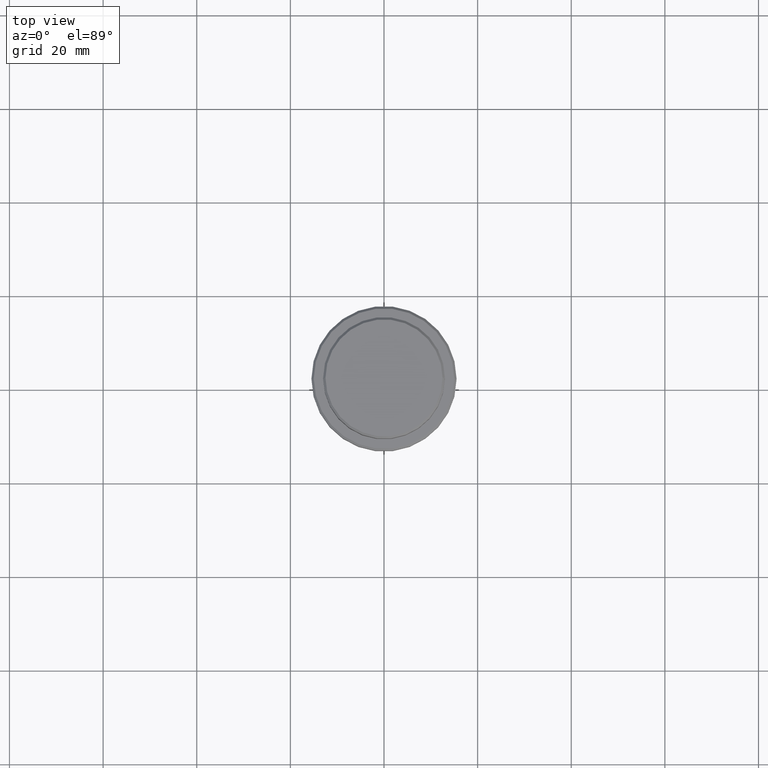
[diagram: clean part render]
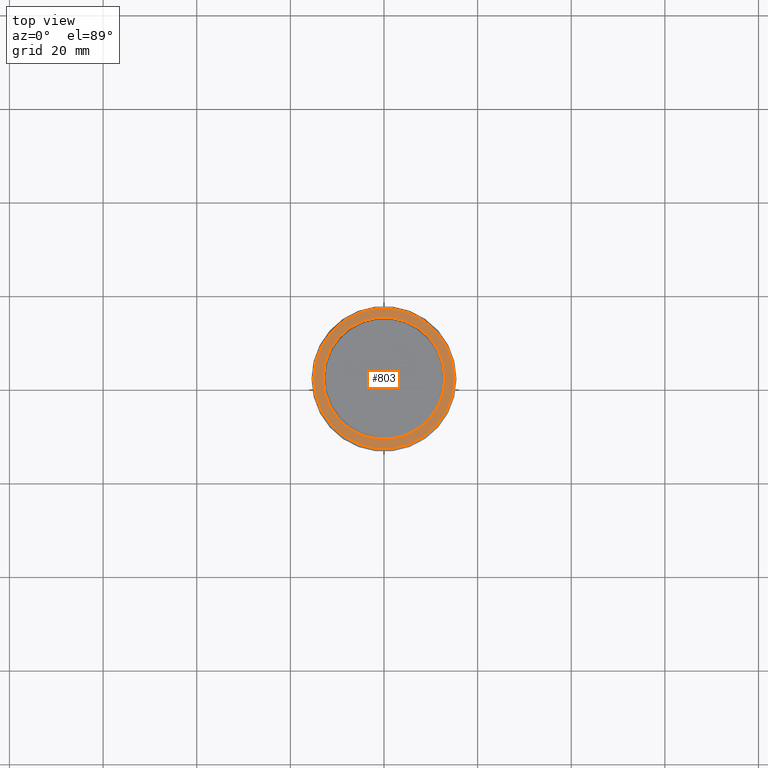
[diagram: same view with one face highlighted and labeled with its STEP entity id]
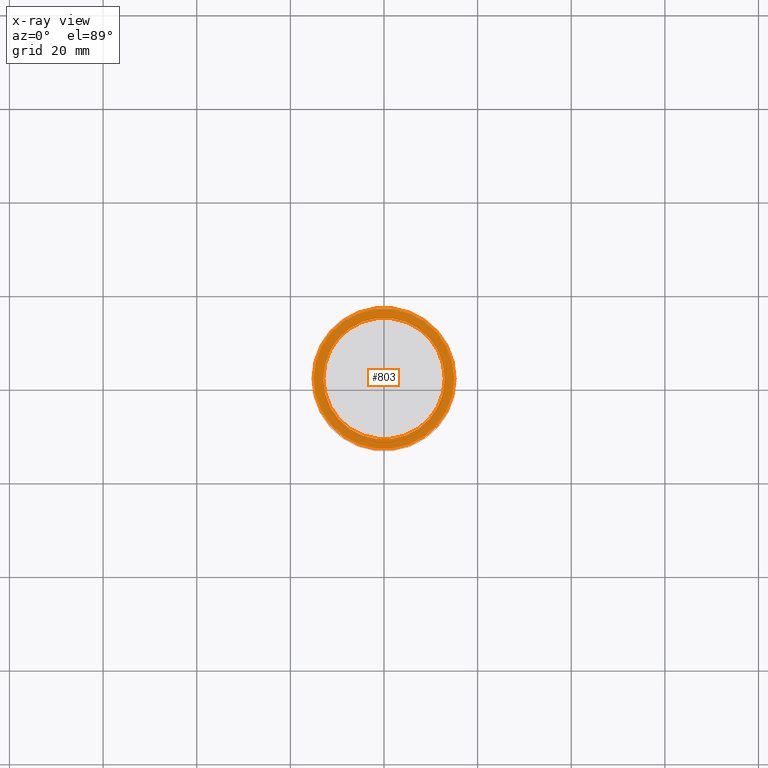
[diagram: x-ray of the same camera — body ghosted, the highlighted face saturated]
A machine part, top view. The second image highlights one B-rep face of the part: STEP entity #803.
The next image is the same camera in x-ray: the body ghosted, the highlighted face saturated — about 0% of this face is hidden behind the body in this view.
In plain terms, the highlighted planar face has unit normal (0, -0, 1).
Its self-contained STEP definition (entity closure, byte-faithful):
#14 = ORIENTED_EDGE ( 'NONE', *, *, #361, .T. ) ;
#41 = DIRECTION ( 'NONE',  ( -0.000000000000000000, -0.000000000000000000, 1.000000000000000000 ) ) ;
#63 = CIRCLE ( 'NONE', #1057, 12.99999999999999467 ) ;
#144 = CARTESIAN_POINT ( 'NONE',  ( 0.000000000000000000, 12.49999999999999289, -8.999999999999987566 ) ) ;
#164 = CIRCLE ( 'NONE', #207, 14.99999999999998579 ) ;
#170 = FACE_BOUND ( 'NONE', #755, .T. ) ;
#171 = DIRECTION ( 'NONE',  ( 1.000000000000000000, 0.000000000000000000, 0.000000000000000000 ) ) ;
#207 = AXIS2_PLACEMENT_3D ( 'NONE', #1305, #988, #541 ) ;
#241 = ORIENTED_EDGE ( 'NONE', *, *, #784, .T. ) ;
#267 = CARTESIAN_POINT ( 'NONE',  ( 0.000000000000000000, 0.000000000000000000, -8.999999999999987566 ) ) ;
#321 = CIRCLE ( 'NONE', #1124, 14.99999999999998579 ) ;
#334 = VERTEX_POINT ( 'NONE', #683 ) ;
#361 = EDGE_CURVE ( 'NONE', #1322, #334, #620, .T. ) ;
#491 = DIRECTION ( 'NONE',  ( 0.000000000000000000, -0.000000000000000000, 1.000000000000000000 ) ) ;
#499 = ORIENTED_EDGE ( 'NONE', *, *, #918, .T. ) ;
#506 = AXIS2_PLACEMENT_3D ( 'NONE', #144, #491, #1242 ) ;
#541 = DIRECTION ( 'NONE',  ( 1.000000000000000000, 0.000000000000000000, 0.000000000000000000 ) ) ;
#573 = CARTESIAN_POINT ( 'NONE',  ( 0.000000000000000000, 0.000000000000000000, -8.999999999999987566 ) ) ;
#620 = CIRCLE ( 'NONE', #830, 12.99999999999999467 ) ;
#631 = CARTESIAN_POINT ( 'NONE',  ( 0.000000000000000000, 0.000000000000000000, -8.999999999999987566 ) ) ;
#683 = CARTESIAN_POINT ( 'NONE',  ( -12.99999999999999467, 1.592040838891558504E-15, -8.999999999999987566 ) ) ;
#755 = EDGE_LOOP ( 'NONE', ( #14, #499 ) ) ;
#763 = DIRECTION ( 'NONE',  ( 1.000000000000000000, 0.000000000000000000, 0.000000000000000000 ) ) ;
#784 = EDGE_CURVE ( 'NONE', #912, #1399, #321, .T. ) ;
#803 = ADVANCED_FACE ( 'NONE', ( #937, #170 ), #1128, .T. ) ;
#830 = AXIS2_PLACEMENT_3D ( 'NONE', #573, #1046, #171 ) ;
#860 = DIRECTION ( 'NONE',  ( 0.000000000000000000, 0.000000000000000000, -1.000000000000000000 ) ) ;
#903 = EDGE_LOOP ( 'NONE', ( #1350, #241 ) ) ;
#912 = VERTEX_POINT ( 'NONE', #1279 ) ;
#918 = EDGE_CURVE ( 'NONE', #334, #1322, #63, .T. ) ;
#937 = FACE_OUTER_BOUND ( 'NONE', #903, .T. ) ;
#988 = DIRECTION ( 'NONE',  ( -0.000000000000000000, -0.000000000000000000, 1.000000000000000000 ) ) ;
#1046 = DIRECTION ( 'NONE',  ( 0.000000000000000000, 0.000000000000000000, -1.000000000000000000 ) ) ;
#1057 = AXIS2_PLACEMENT_3D ( 'NONE', #631, #860, #763 ) ;
#1124 = AXIS2_PLACEMENT_3D ( 'NONE', #267, #41, #1147 ) ;
#1128 = PLANE ( 'NONE',  #506 ) ;
#1147 = DIRECTION ( 'NONE',  ( 1.000000000000000000, 0.000000000000000000, 0.000000000000000000 ) ) ;
#1209 = EDGE_CURVE ( 'NONE', #1399, #912, #164, .T. ) ;
#1242 = DIRECTION ( 'NONE',  ( 1.000000000000000000, 0.000000000000000000, 0.000000000000000000 ) ) ;
#1258 = CARTESIAN_POINT ( 'NONE',  ( 12.99999999999999467, 0.000000000000000000, -8.999999999999987566 ) ) ;
#1269 = CARTESIAN_POINT ( 'NONE',  ( -14.99999999999998579, 0.000000000000000000, -8.999999999999987566 ) ) ;
#1279 = CARTESIAN_POINT ( 'NONE',  ( 14.99999999999998579, 1.867586368699712587E-15, -8.999999999999987566 ) ) ;
#1305 = CARTESIAN_POINT ( 'NONE',  ( 0.000000000000000000, 0.000000000000000000, -8.999999999999987566 ) ) ;
#1322 = VERTEX_POINT ( 'NONE', #1258 ) ;
#1350 = ORIENTED_EDGE ( 'NONE', *, *, #1209, .T. ) ;
#1399 = VERTEX_POINT ( 'NONE', #1269 ) ;